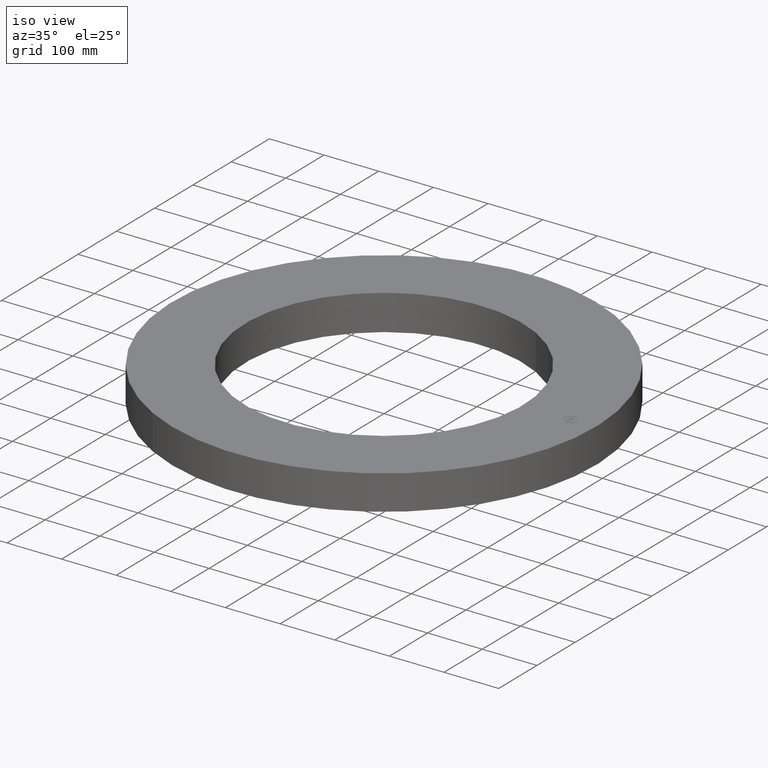
[diagram: clean part render]
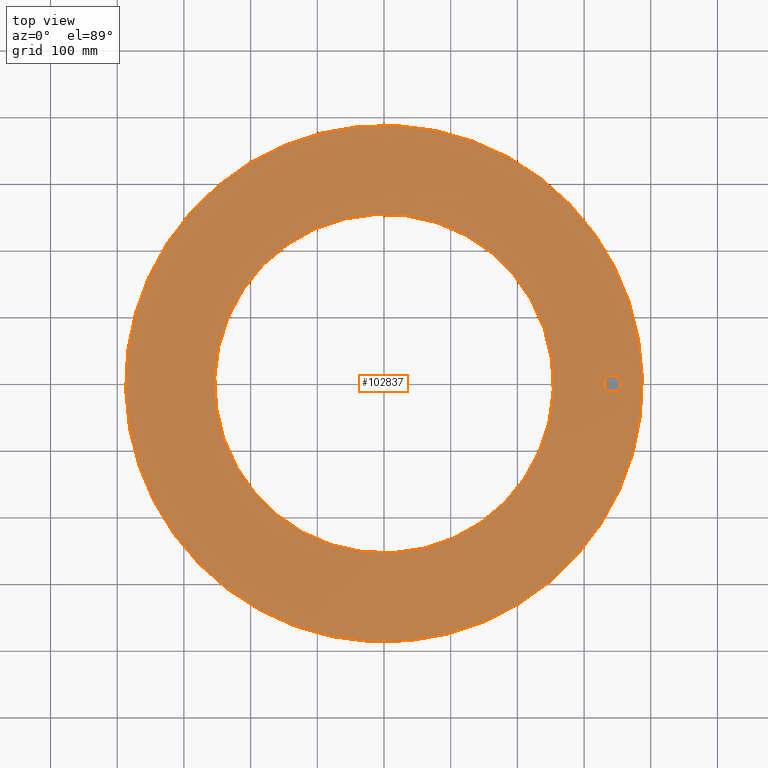
[diagram: tour spotlight — one face highlighted and labeled with its STEP entity id]
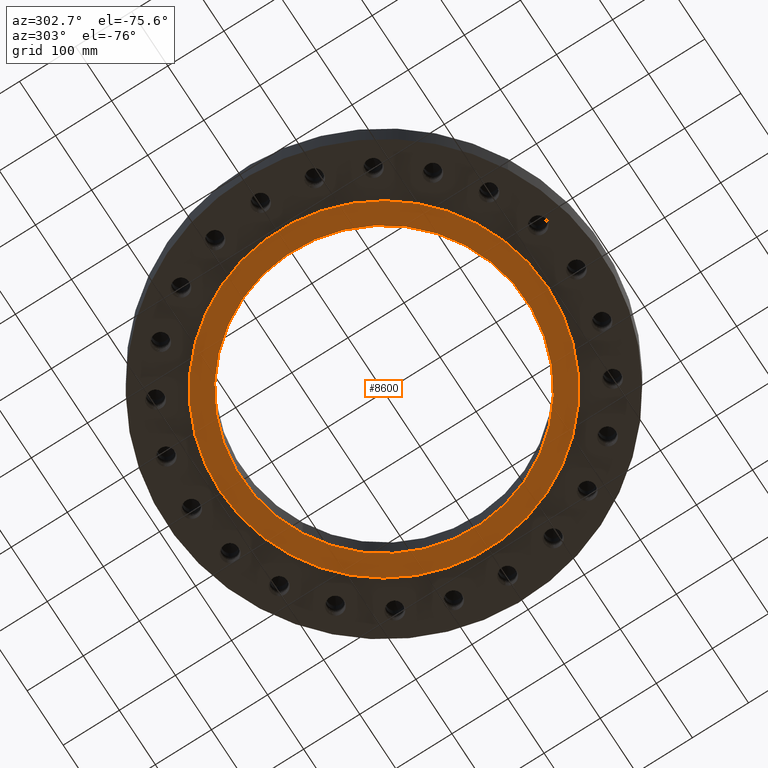
[diagram: tour spotlight — one face highlighted and labeled with its STEP entity id]
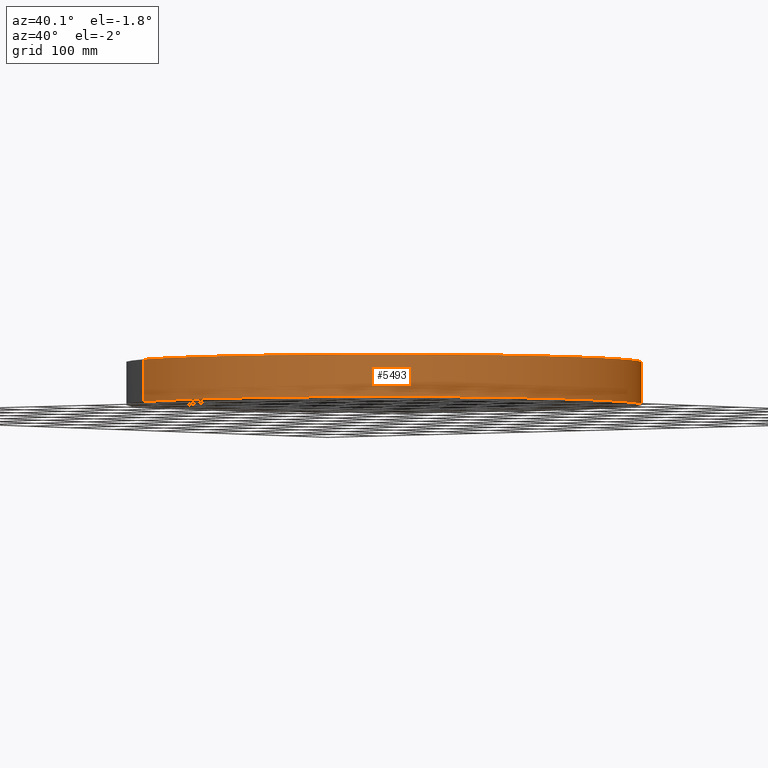
[diagram: tour spotlight — one face highlighted and labeled with its STEP entity id]
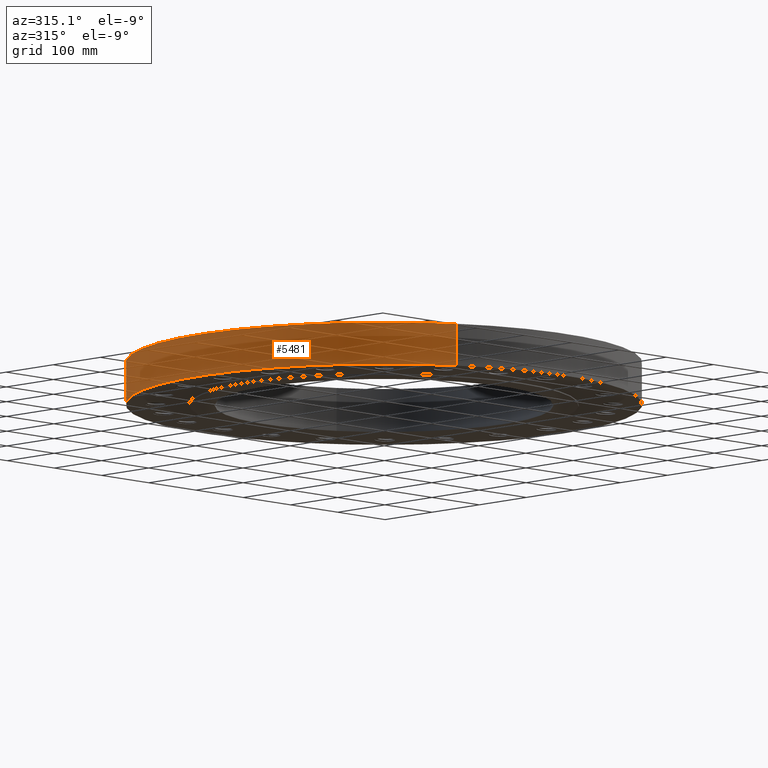
[diagram: tour spotlight — one face highlighted and labeled with its STEP entity id]
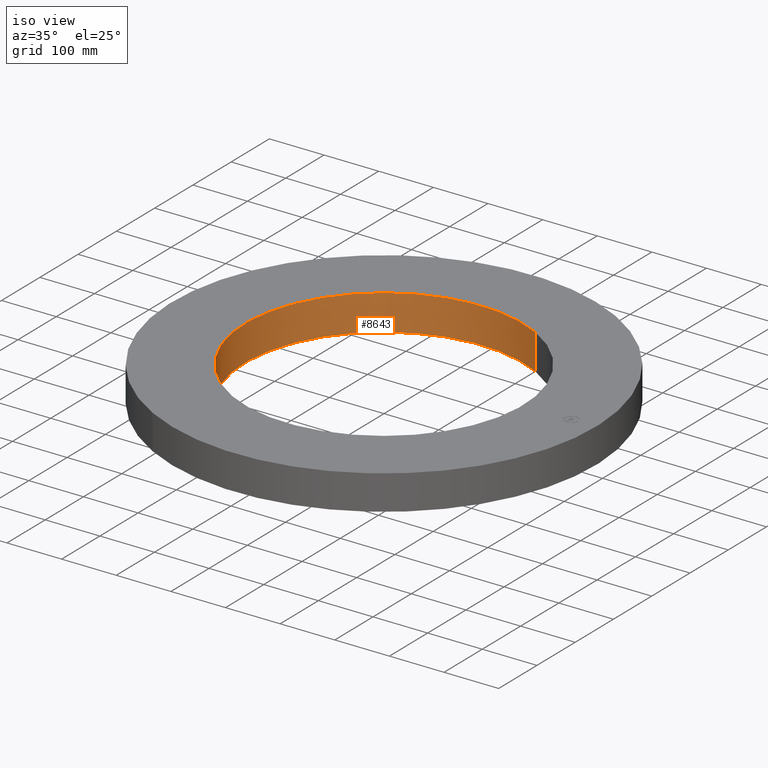
[diagram: tour spotlight — one face highlighted and labeled with its STEP entity id]
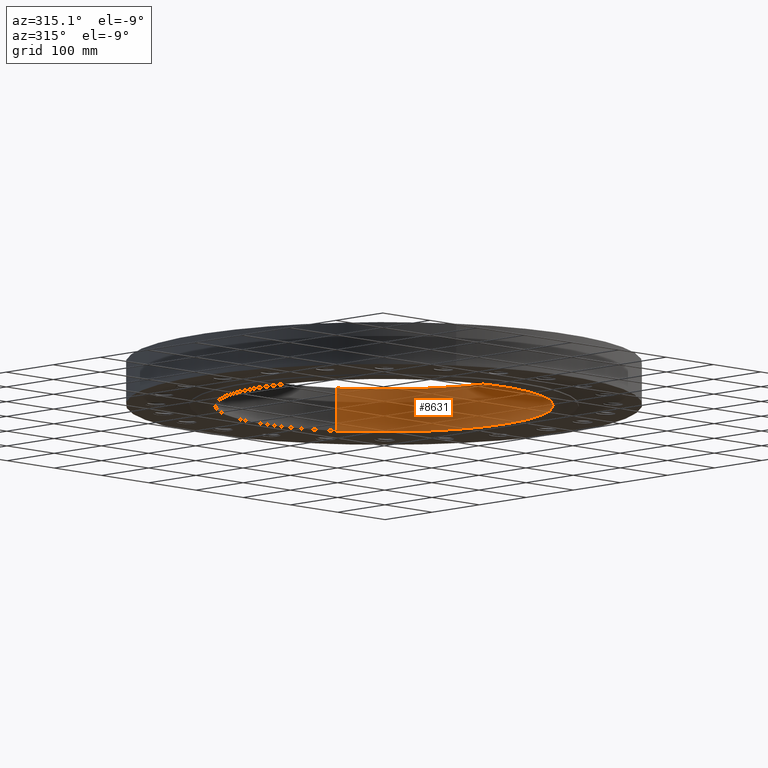
[diagram: tour spotlight — one face highlighted and labeled with its STEP entity id]
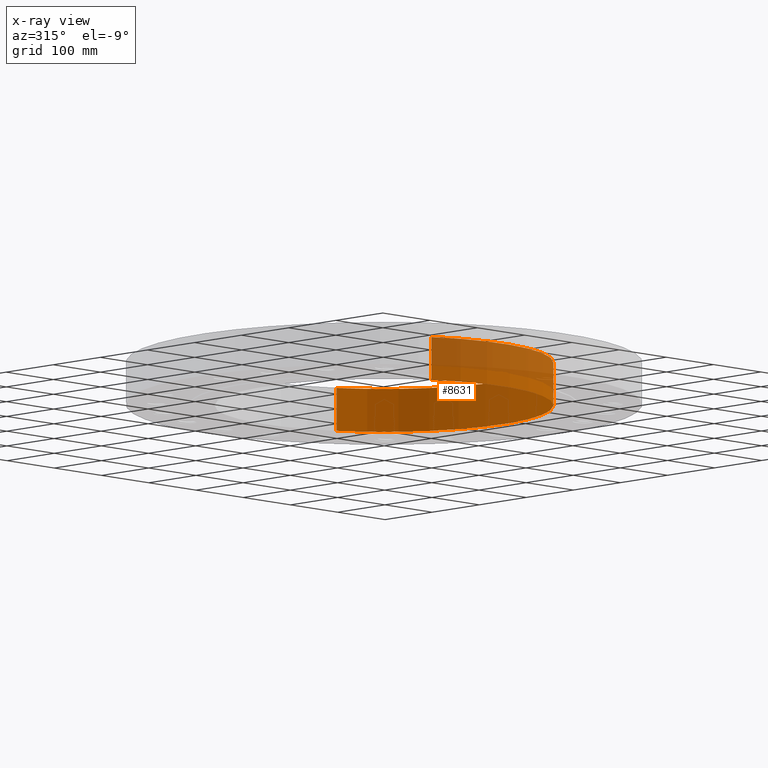
[diagram: x-ray of the same camera — body ghosted, this tour face saturated]
A machine part: a face-by-face anatomy tour. The part has 2266 B-rep faces; the first image is the clean iso view, then the 6 largest visible faces are spotlighted one at a time (largest first), each with its STEP entity span.

Face 1 — top view, entity #102837. In plain terms, the highlighted planar face has unit normal (0, 0, -1).
Definition (entity closure, byte-faithful):
#5465=AXIS2_PLACEMENT_3D('Circle Axis2P3D',#5463,#5464,$) ;
#5484=AXIS2_PLACEMENT_3D('Circle Axis2P3D',#5482,#5483,$) ;
#8608=AXIS2_PLACEMENT_3D('Circle Axis2P3D',#8606,#8607,$) ;
#8634=AXIS2_PLACEMENT_3D('Circle Axis2P3D',#8632,#8633,$) ;
#102809=AXIS2_PLACEMENT_3D('Plane Axis2P3D',#102806,#102807,#102808) ;
#102821=AXIS2_PLACEMENT_3D('Circle Axis2P3D',#102819,#102820,$) ;
#102830=AXIS2_PLACEMENT_3D('Circle Axis2P3D',#102828,#102829,$) ;
#5460=CARTESIAN_POINT('Vertex',(-7.31123946374,-13.3831340689,2.50000000001)) ;
#5463=CARTESIAN_POINT('Axis2P3D Location',(0.,0.,2.50000000001)) ;
#5467=CARTESIAN_POINT('Vertex',(7.31123946374,13.3831340689,2.50000000001)) ;
#5482=CARTESIAN_POINT('Axis2P3D Location',(0.,0.,2.50000000001)) ;
#8606=CARTESIAN_POINT('Axis2P3D Location',(0.,0.,2.50000000001)) ;
#8610=CARTESIAN_POINT('Vertex',(4.79425538606,8.77582561894,2.50000000001)) ;
#8612=CARTESIAN_POINT('Vertex',(-4.79425538606,-8.77582561894,2.50000000001)) ;
#8632=CARTESIAN_POINT('Axis2P3D Location',(0.,0.,2.50000000001)) ;
#102806=CARTESIAN_POINT('Axis2P3D Location',(0.,10.,2.50000000001)) ;
#102819=CARTESIAN_POINT('Axis2P3D Location',(13.5000000001,0.,2.50000000001)) ;
#102823=CARTESIAN_POINT('Vertex',(13.5000000001,-0.499999995002,2.50000000001)) ;
#102825=CARTESIAN_POINT('Vertex',(13.5000000001,0.499999995002,2.50000000001)) ;
#102828=CARTESIAN_POINT('Axis2P3D Location',(13.5000000001,0.,2.50000000001)) ;
#5464=DIRECTION('Axis2P3D Direction',(0.,0.,-0.0393700787402)) ;
#5483=DIRECTION('Axis2P3D Direction',(0.,0.,-0.0393700787402)) ;
#8607=DIRECTION('Axis2P3D Direction',(0.,0.,-0.0393700787402)) ;
#8633=DIRECTION('Axis2P3D Direction',(0.,0.,-0.0393700787402)) ;
#102807=DIRECTION('Axis2P3D Direction',(0.,0.,-0.0393700787402)) ;
#102808=DIRECTION('Axis2P3D XDirection',(0.0393700787402,0.,0.)) ;
#102820=DIRECTION('Axis2P3D Direction',(0.,0.,-0.0393700787402)) ;
#102829=DIRECTION('Axis2P3D Direction',(0.,0.,-0.0393700787402)) ;
#102812=ORIENTED_EDGE('',*,*,#5486,.F.) ;
#102813=ORIENTED_EDGE('',*,*,#5469,.F.) ;
#102816=ORIENTED_EDGE('',*,*,#8636,.T.) ;
#102817=ORIENTED_EDGE('',*,*,#8614,.T.) ;
#102834=ORIENTED_EDGE('',*,*,#102827,.F.) ;
#102835=ORIENTED_EDGE('',*,*,#102832,.F.) ;
#102818=FACE_BOUND('',#102815,.T.) ;
#102836=FACE_BOUND('',#102833,.T.) ;
#102837=ADVANCED_FACE('PartBody',(#102814,#102818,#102836),#102810,.F.) ;
#5466=CIRCLE('generated circle',#5465,15.2500000001) ;
#5485=CIRCLE('generated circle',#5484,15.2500000001) ;
#8609=CIRCLE('generated circle',#8608,10.) ;
#8635=CIRCLE('generated circle',#8634,10.) ;
#102822=CIRCLE('generated circle',#102821,0.499999995002) ;
#102831=CIRCLE('generated circle',#102830,0.499999995002) ;
#5469=EDGE_CURVE('',#5461,#5468,#5466,.T.) ;
#5486=EDGE_CURVE('',#5468,#5461,#5485,.T.) ;
#8614=EDGE_CURVE('',#8611,#8613,#8609,.T.) ;
#8636=EDGE_CURVE('',#8613,#8611,#8635,.T.) ;
#102827=EDGE_CURVE('',#102824,#102826,#102822,.F.) ;
#102832=EDGE_CURVE('',#102826,#102824,#102831,.F.) ;
#102811=EDGE_LOOP('',(#102812,#102813)) ;
#102815=EDGE_LOOP('',(#102816,#102817)) ;
#102833=EDGE_LOOP('',(#102834,#102835)) ;
#102814=FACE_OUTER_BOUND('',#102811,.T.) ;
#102810=PLANE('',#102809) ;
#5461=VERTEX_POINT('',#5460) ;
#5468=VERTEX_POINT('',#5467) ;
#8611=VERTEX_POINT('',#8610) ;
#8613=VERTEX_POINT('',#8612) ;
#102824=VERTEX_POINT('',#102823) ;
#102826=VERTEX_POINT('',#102825) ;

Face 2 — auxiliary view, entity #8600. In plain terms, the highlighted planar face has unit normal (0, 0, -1).
Definition (entity closure, byte-faithful):
#5501=AXIS2_PLACEMENT_3D('Circle Axis2P3D',#5499,#5500,$) ;
#5527=AXIS2_PLACEMENT_3D('Circle Axis2P3D',#5525,#5526,$) ;
#8576=AXIS2_PLACEMENT_3D('Plane Axis2P3D',#8573,#8574,#8575) ;
#8584=AXIS2_PLACEMENT_3D('Circle Axis2P3D',#8582,#8583,$) ;
#8593=AXIS2_PLACEMENT_3D('Circle Axis2P3D',#8591,#8592,$) ;
#5499=CARTESIAN_POINT('Axis2P3D Location',(0.,0.,-0.0625000000003)) ;
#5503=CARTESIAN_POINT('Vertex',(5.51339369397,10.0921994618,-0.0625000000003)) ;
#5505=CARTESIAN_POINT('Vertex',(-5.51339369397,-10.0921994618,-0.0625000000003)) ;
#5525=CARTESIAN_POINT('Axis2P3D Location',(0.,0.,-0.0625000000003)) ;
#8573=CARTESIAN_POINT('Axis2P3D Location',(0.,11.5,-0.0625000000003)) ;
#8582=CARTESIAN_POINT('Axis2P3D Location',(0.,0.,-0.0625000000003)) ;
#8586=CARTESIAN_POINT('Vertex',(4.79425538606,8.77582561894,-0.0625000000002)) ;
#8588=CARTESIAN_POINT('Vertex',(-4.79425538606,-8.77582561894,-0.0625000000002)) ;
#8591=CARTESIAN_POINT('Axis2P3D Location',(0.,0.,-0.0625000000003)) ;
#5500=DIRECTION('Axis2P3D Direction',(0.,0.,-0.0393700787402)) ;
#5526=DIRECTION('Axis2P3D Direction',(0.,0.,-0.0393700787402)) ;
#8574=DIRECTION('Axis2P3D Direction',(0.,0.,-0.0393700787402)) ;
#8575=DIRECTION('Axis2P3D XDirection',(0.0393700787402,0.,0.)) ;
#8583=DIRECTION('Axis2P3D Direction',(0.,0.,-0.0393700787402)) ;
#8592=DIRECTION('Axis2P3D Direction',(0.,0.,-0.0393700787402)) ;
#8579=ORIENTED_EDGE('',*,*,#5529,.T.) ;
#8580=ORIENTED_EDGE('',*,*,#5507,.T.) ;
#8597=ORIENTED_EDGE('',*,*,#8590,.F.) ;
#8598=ORIENTED_EDGE('',*,*,#8595,.F.) ;
#8599=FACE_BOUND('',#8596,.T.) ;
#8600=ADVANCED_FACE('PartBody',(#8581,#8599),#8577,.T.) ;
#5502=CIRCLE('generated circle',#5501,11.5) ;
#5528=CIRCLE('generated circle',#5527,11.5) ;
#8585=CIRCLE('generated circle',#8584,10.) ;
#8594=CIRCLE('generated circle',#8593,10.) ;
#5507=EDGE_CURVE('',#5504,#5506,#5502,.T.) ;
#5529=EDGE_CURVE('',#5506,#5504,#5528,.T.) ;
#8590=EDGE_CURVE('',#8587,#8589,#8585,.T.) ;
#8595=EDGE_CURVE('',#8589,#8587,#8594,.T.) ;
#8578=EDGE_LOOP('',(#8579,#8580)) ;
#8596=EDGE_LOOP('',(#8597,#8598)) ;
#8581=FACE_OUTER_BOUND('',#8578,.T.) ;
#8577=PLANE('',#8576) ;
#5504=VERTEX_POINT('',#5503) ;
#5506=VERTEX_POINT('',#5505) ;
#8587=VERTEX_POINT('',#8586) ;
#8589=VERTEX_POINT('',#8588) ;

Face 3 — auxiliary view, entity #5493. In plain terms, the highlighted cylindrical surface (partial cylindrical patch) has radius 387.35 mm, axis along (0, 0, -1).
Definition (entity closure, byte-faithful):
#4314=AXIS2_PLACEMENT_3D('Circle Axis2P3D',#4312,#4313,$) ;
#5454=AXIS2_PLACEMENT_3D('Cylinder Axis2P3D',#5451,#5452,#5453) ;
#5484=AXIS2_PLACEMENT_3D('Circle Axis2P3D',#5482,#5483,$) ;
#4307=CARTESIAN_POINT('Vertex',(-7.31123946374,-13.3831340689,-4.83952335774E-014)) ;
#4309=CARTESIAN_POINT('Vertex',(7.31123946374,13.3831340689,-4.83952335774E-014)) ;
#4312=CARTESIAN_POINT('Axis2P3D Location',(0.,0.,0.)) ;
#5451=CARTESIAN_POINT('Axis2P3D Location',(0.,0.,1.21875)) ;
#5456=CARTESIAN_POINT('Line Origine',(-7.31123946374,-13.3831340689,1.25)) ;
#5460=CARTESIAN_POINT('Vertex',(-7.31123946374,-13.3831340689,2.50000000001)) ;
#5467=CARTESIAN_POINT('Vertex',(7.31123946374,13.3831340689,2.50000000001)) ;
#5470=CARTESIAN_POINT('Line Origine',(7.31123946374,13.3831340689,1.25)) ;
#5482=CARTESIAN_POINT('Axis2P3D Location',(0.,0.,2.50000000001)) ;
#4313=DIRECTION('Axis2P3D Direction',(0.,0.,-0.0393700787402)) ;
#5452=DIRECTION('Axis2P3D Direction',(0.,0.,-0.0393700787402)) ;
#5453=DIRECTION('Axis2P3D XDirection',(0.0188750212049,0.0345504945626,0.)) ;
#5457=DIRECTION('Vector Direction',(0.,0.,-0.0393700787402)) ;
#5471=DIRECTION('Vector Direction',(0.,0.,-0.0393700787402)) ;
#5483=DIRECTION('Axis2P3D Direction',(0.,0.,-0.0393700787402)) ;
#5458=VECTOR('Line Direction',#5457,0.0393700787402) ;
#5472=VECTOR('Line Direction',#5471,0.0393700787402) ;
#5488=ORIENTED_EDGE('',*,*,#4316,.F.) ;
#5489=ORIENTED_EDGE('',*,*,#5474,.T.) ;
#5490=ORIENTED_EDGE('',*,*,#5486,.T.) ;
#5491=ORIENTED_EDGE('',*,*,#5462,.F.) ;
#5493=ADVANCED_FACE('PartBody',(#5492),#5455,.T.) ;
#4315=CIRCLE('generated circle',#4314,15.2500000001) ;
#5485=CIRCLE('generated circle',#5484,15.2500000001) ;
#5455=CYLINDRICAL_SURFACE('generated cylinder',#5454,15.2500000001) ;
#4316=EDGE_CURVE('',#4310,#4308,#4315,.T.) ;
#5462=EDGE_CURVE('',#4308,#5461,#5459,.F.) ;
#5474=EDGE_CURVE('',#4310,#5468,#5473,.F.) ;
#5486=EDGE_CURVE('',#5468,#5461,#5485,.T.) ;
#5487=EDGE_LOOP('',(#5488,#5489,#5490,#5491)) ;
#5492=FACE_OUTER_BOUND('',#5487,.T.) ;
#5459=LINE('Line',#5456,#5458) ;
#5473=LINE('Line',#5470,#5472) ;
#4308=VERTEX_POINT('',#4307) ;
#4310=VERTEX_POINT('',#4309) ;
#5461=VERTEX_POINT('',#5460) ;
#5468=VERTEX_POINT('',#5467) ;

Face 4 — auxiliary view, entity #5481. In plain terms, the highlighted cylindrical surface (partial cylindrical patch) has radius 387.35 mm, axis along (0, 0, -1).
Definition (entity closure, byte-faithful):
#4305=AXIS2_PLACEMENT_3D('Circle Axis2P3D',#4303,#4304,$) ;
#5454=AXIS2_PLACEMENT_3D('Cylinder Axis2P3D',#5451,#5452,#5453) ;
#5465=AXIS2_PLACEMENT_3D('Circle Axis2P3D',#5463,#5464,$) ;
#4303=CARTESIAN_POINT('Axis2P3D Location',(0.,0.,0.)) ;
#4307=CARTESIAN_POINT('Vertex',(-7.31123946374,-13.3831340689,-4.83952335774E-014)) ;
#4309=CARTESIAN_POINT('Vertex',(7.31123946374,13.3831340689,-4.83952335774E-014)) ;
#5451=CARTESIAN_POINT('Axis2P3D Location',(0.,0.,1.21875)) ;
#5456=CARTESIAN_POINT('Line Origine',(-7.31123946374,-13.3831340689,1.25)) ;
#5460=CARTESIAN_POINT('Vertex',(-7.31123946374,-13.3831340689,2.50000000001)) ;
#5463=CARTESIAN_POINT('Axis2P3D Location',(0.,0.,2.50000000001)) ;
#5467=CARTESIAN_POINT('Vertex',(7.31123946374,13.3831340689,2.50000000001)) ;
#5470=CARTESIAN_POINT('Line Origine',(7.31123946374,13.3831340689,1.25)) ;
#4304=DIRECTION('Axis2P3D Direction',(0.,0.,-0.0393700787402)) ;
#5452=DIRECTION('Axis2P3D Direction',(0.,0.,-0.0393700787402)) ;
#5453=DIRECTION('Axis2P3D XDirection',(0.0188750212049,0.0345504945626,0.)) ;
#5457=DIRECTION('Vector Direction',(0.,0.,-0.0393700787402)) ;
#5464=DIRECTION('Axis2P3D Direction',(0.,0.,-0.0393700787402)) ;
#5471=DIRECTION('Vector Direction',(0.,0.,-0.0393700787402)) ;
#5458=VECTOR('Line Direction',#5457,0.0393700787402) ;
#5472=VECTOR('Line Direction',#5471,0.0393700787402) ;
#5476=ORIENTED_EDGE('',*,*,#4311,.F.) ;
#5477=ORIENTED_EDGE('',*,*,#5462,.T.) ;
#5478=ORIENTED_EDGE('',*,*,#5469,.T.) ;
#5479=ORIENTED_EDGE('',*,*,#5474,.F.) ;
#5481=ADVANCED_FACE('PartBody',(#5480),#5455,.T.) ;
#4306=CIRCLE('generated circle',#4305,15.2500000001) ;
#5466=CIRCLE('generated circle',#5465,15.2500000001) ;
#5455=CYLINDRICAL_SURFACE('generated cylinder',#5454,15.2500000001) ;
#4311=EDGE_CURVE('',#4308,#4310,#4306,.T.) ;
#5462=EDGE_CURVE('',#4308,#5461,#5459,.F.) ;
#5469=EDGE_CURVE('',#5461,#5468,#5466,.T.) ;
#5474=EDGE_CURVE('',#4310,#5468,#5473,.F.) ;
#5475=EDGE_LOOP('',(#5476,#5477,#5478,#5479)) ;
#5480=FACE_OUTER_BOUND('',#5475,.T.) ;
#5459=LINE('Line',#5456,#5458) ;
#5473=LINE('Line',#5470,#5472) ;
#4308=VERTEX_POINT('',#4307) ;
#4310=VERTEX_POINT('',#4309) ;
#5461=VERTEX_POINT('',#5460) ;
#5468=VERTEX_POINT('',#5467) ;

Face 5 — iso view, entity #8643. In plain terms, the highlighted cylindrical surface (partial cylindrical patch) has radius 254 mm, axis along (0, 0, -1).
Definition (entity closure, byte-faithful):
#8593=AXIS2_PLACEMENT_3D('Circle Axis2P3D',#8591,#8592,$) ;
#8604=AXIS2_PLACEMENT_3D('Cylinder Axis2P3D',#8601,#8602,#8603) ;
#8634=AXIS2_PLACEMENT_3D('Circle Axis2P3D',#8632,#8633,$) ;
#8586=CARTESIAN_POINT('Vertex',(4.79425538606,8.77582561894,-0.0625000000002)) ;
#8588=CARTESIAN_POINT('Vertex',(-4.79425538606,-8.77582561894,-0.0625000000002)) ;
#8591=CARTESIAN_POINT('Axis2P3D Location',(0.,0.,-0.0625000000003)) ;
#8601=CARTESIAN_POINT('Axis2P3D Location',(0.,0.,1.21875)) ;
#8610=CARTESIAN_POINT('Vertex',(4.79425538606,8.77582561894,2.50000000001)) ;
#8612=CARTESIAN_POINT('Vertex',(-4.79425538606,-8.77582561894,2.50000000001)) ;
#8615=CARTESIAN_POINT('Line Origine',(4.79425538606,8.77582561894,1.21875)) ;
#8620=CARTESIAN_POINT('Line Origine',(-4.79425538606,-8.77582561894,1.21875)) ;
#8632=CARTESIAN_POINT('Axis2P3D Location',(0.,0.,2.50000000001)) ;
#8592=DIRECTION('Axis2P3D Direction',(0.,0.,-0.0393700787402)) ;
#8602=DIRECTION('Axis2P3D Direction',(0.,0.,-0.0393700787402)) ;
#8603=DIRECTION('Axis2P3D XDirection',(-0.0188750212049,-0.0345504945626,0.)) ;
#8616=DIRECTION('Vector Direction',(0.,0.,-0.0393700787402)) ;
#8621=DIRECTION('Vector Direction',(0.,0.,-0.0393700787402)) ;
#8633=DIRECTION('Axis2P3D Direction',(0.,0.,-0.0393700787402)) ;
#8617=VECTOR('Line Direction',#8616,0.0393700787402) ;
#8622=VECTOR('Line Direction',#8621,0.0393700787402) ;
#8638=ORIENTED_EDGE('',*,*,#8636,.F.) ;
#8639=ORIENTED_EDGE('',*,*,#8624,.T.) ;
#8640=ORIENTED_EDGE('',*,*,#8595,.T.) ;
#8641=ORIENTED_EDGE('',*,*,#8619,.F.) ;
#8643=ADVANCED_FACE('PartBody',(#8642),#8605,.F.) ;
#8594=CIRCLE('generated circle',#8593,10.) ;
#8635=CIRCLE('generated circle',#8634,10.) ;
#8605=CYLINDRICAL_SURFACE('generated cylinder',#8604,10.) ;
#8595=EDGE_CURVE('',#8589,#8587,#8594,.T.) ;
#8619=EDGE_CURVE('',#8611,#8587,#8618,.T.) ;
#8624=EDGE_CURVE('',#8613,#8589,#8623,.T.) ;
#8636=EDGE_CURVE('',#8613,#8611,#8635,.T.) ;
#8637=EDGE_LOOP('',(#8638,#8639,#8640,#8641)) ;
#8642=FACE_OUTER_BOUND('',#8637,.T.) ;
#8618=LINE('Line',#8615,#8617) ;
#8623=LINE('Line',#8620,#8622) ;
#8587=VERTEX_POINT('',#8586) ;
#8589=VERTEX_POINT('',#8588) ;
#8611=VERTEX_POINT('',#8610) ;
#8613=VERTEX_POINT('',#8612) ;

Face 6 — auxiliary view, entity #8631. An x-ray twin of the same camera follows (body ghosted, this face saturated) — the face is partly hidden behind the body. In plain terms, the highlighted cylindrical surface (partial cylindrical patch) has radius 254 mm, axis along (0, 0, -1).
Definition (entity closure, byte-faithful):
#8584=AXIS2_PLACEMENT_3D('Circle Axis2P3D',#8582,#8583,$) ;
#8604=AXIS2_PLACEMENT_3D('Cylinder Axis2P3D',#8601,#8602,#8603) ;
#8608=AXIS2_PLACEMENT_3D('Circle Axis2P3D',#8606,#8607,$) ;
#8582=CARTESIAN_POINT('Axis2P3D Location',(0.,0.,-0.0625000000003)) ;
#8586=CARTESIAN_POINT('Vertex',(4.79425538606,8.77582561894,-0.0625000000002)) ;
#8588=CARTESIAN_POINT('Vertex',(-4.79425538606,-8.77582561894,-0.0625000000002)) ;
#8601=CARTESIAN_POINT('Axis2P3D Location',(0.,0.,1.21875)) ;
#8606=CARTESIAN_POINT('Axis2P3D Location',(0.,0.,2.50000000001)) ;
#8610=CARTESIAN_POINT('Vertex',(4.79425538606,8.77582561894,2.50000000001)) ;
#8612=CARTESIAN_POINT('Vertex',(-4.79425538606,-8.77582561894,2.50000000001)) ;
#8615=CARTESIAN_POINT('Line Origine',(4.79425538606,8.77582561894,1.21875)) ;
#8620=CARTESIAN_POINT('Line Origine',(-4.79425538606,-8.77582561894,1.21875)) ;
#8583=DIRECTION('Axis2P3D Direction',(0.,0.,-0.0393700787402)) ;
#8602=DIRECTION('Axis2P3D Direction',(0.,0.,-0.0393700787402)) ;
#8603=DIRECTION('Axis2P3D XDirection',(-0.0188750212049,-0.0345504945626,0.)) ;
#8607=DIRECTION('Axis2P3D Direction',(0.,0.,-0.0393700787402)) ;
#8616=DIRECTION('Vector Direction',(0.,0.,-0.0393700787402)) ;
#8621=DIRECTION('Vector Direction',(0.,0.,-0.0393700787402)) ;
#8617=VECTOR('Line Direction',#8616,0.0393700787402) ;
#8622=VECTOR('Line Direction',#8621,0.0393700787402) ;
#8626=ORIENTED_EDGE('',*,*,#8614,.F.) ;
#8627=ORIENTED_EDGE('',*,*,#8619,.T.) ;
#8628=ORIENTED_EDGE('',*,*,#8590,.T.) ;
#8629=ORIENTED_EDGE('',*,*,#8624,.F.) ;
#8631=ADVANCED_FACE('PartBody',(#8630),#8605,.F.) ;
#8585=CIRCLE('generated circle',#8584,10.) ;
#8609=CIRCLE('generated circle',#8608,10.) ;
#8605=CYLINDRICAL_SURFACE('generated cylinder',#8604,10.) ;
#8590=EDGE_CURVE('',#8587,#8589,#8585,.T.) ;
#8614=EDGE_CURVE('',#8611,#8613,#8609,.T.) ;
#8619=EDGE_CURVE('',#8611,#8587,#8618,.T.) ;
#8624=EDGE_CURVE('',#8613,#8589,#8623,.T.) ;
#8625=EDGE_LOOP('',(#8626,#8627,#8628,#8629)) ;
#8630=FACE_OUTER_BOUND('',#8625,.T.) ;
#8618=LINE('Line',#8615,#8617) ;
#8623=LINE('Line',#8620,#8622) ;
#8587=VERTEX_POINT('',#8586) ;
#8589=VERTEX_POINT('',#8588) ;
#8611=VERTEX_POINT('',#8610) ;
#8613=VERTEX_POINT('',#8612) ;